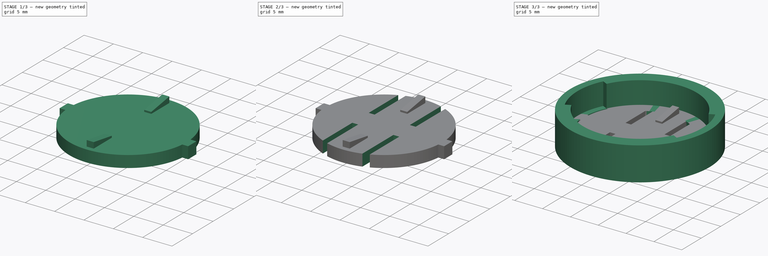
[diagram: build sequence overview — one tinted view per stage of 3, left to right]
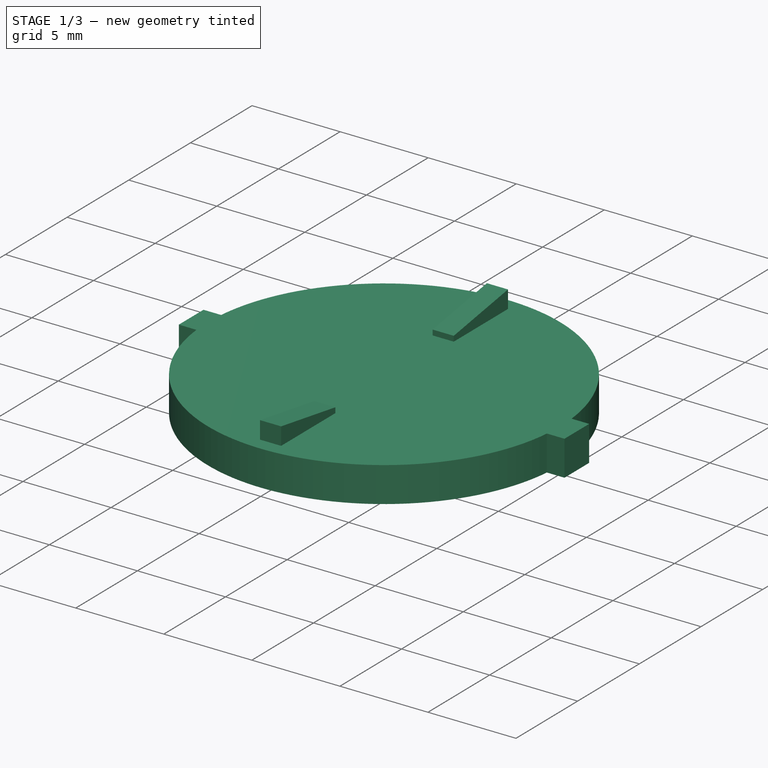
[diagram: stage 1 of 3 — iso view after this stage's code; geometry added in this stage tinted green]
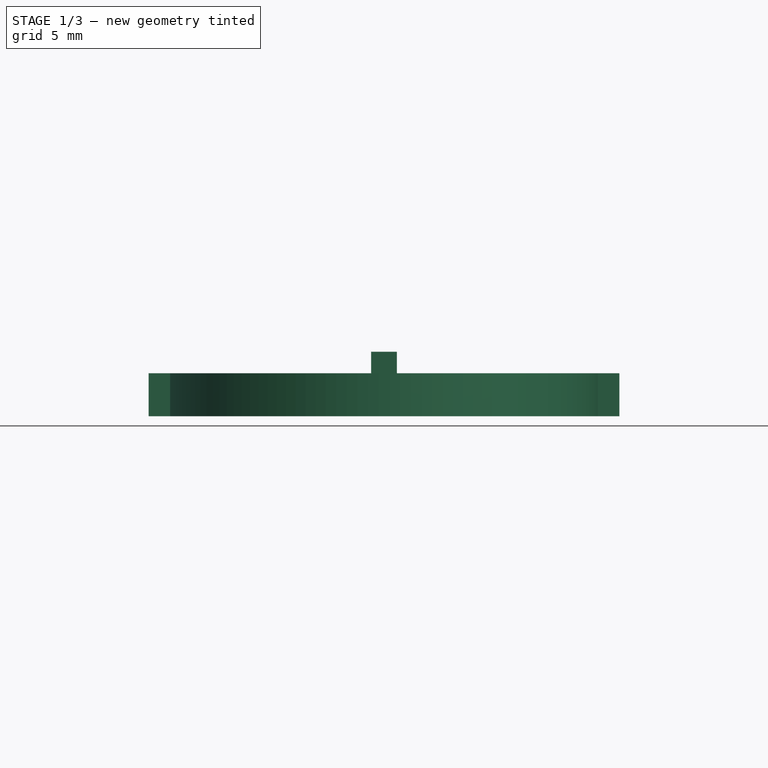
[diagram: stage 1 of 3 — front view after this stage's code; geometry added in this stage tinted green]
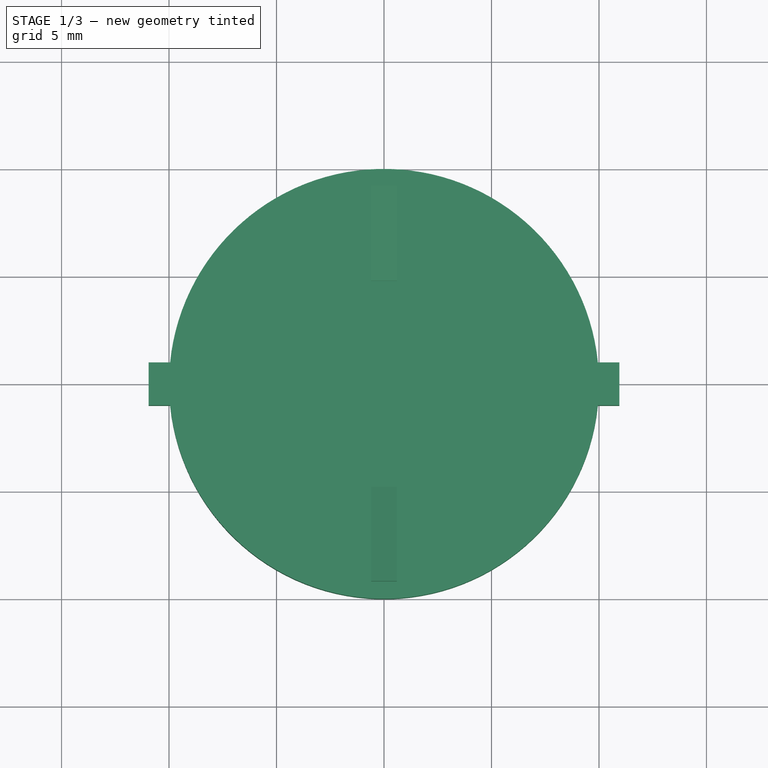
[diagram: stage 1 of 3 — top view after this stage's code; geometry added in this stage tinted green]
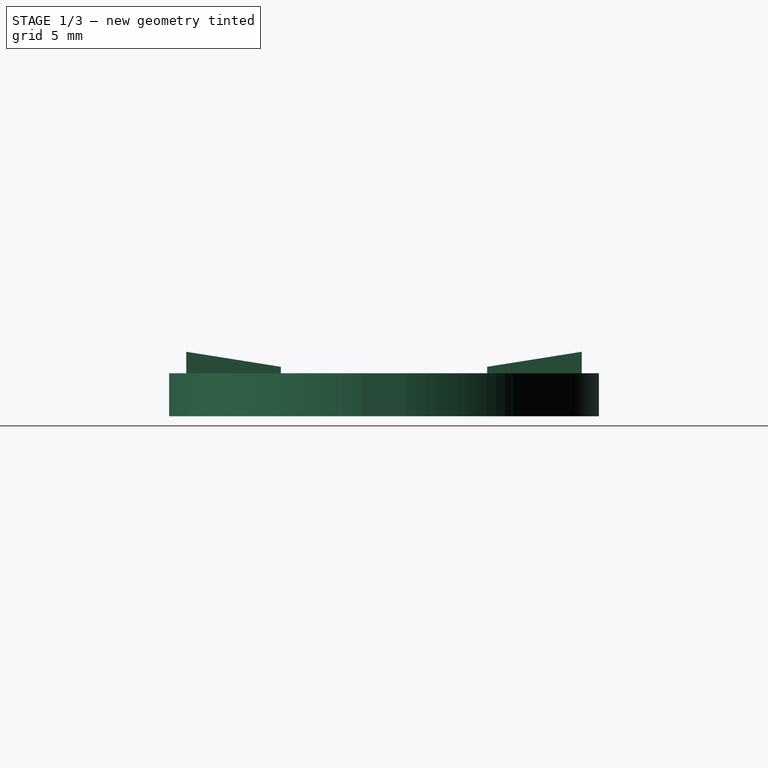
[diagram: stage 1 of 3 — right view after this stage's code; geometry added in this stage tinted green]
FCSTD DOCUMENT  (FreeCAD 1.0R39109 (Git))
Label: magicshine seemee300 mount
License: All rights reserved
LicenseURL: https://en.wikipedia.org/wiki/All_rights_reserved
objects: Sketcher::SketchObject×5, PartDesign::Pad×4, PartDesign::Body×2, PartDesign::Pocket×1
note: 27 computed .brp shape members not serialized (recipe doc carries the construction recipe); baked Part::Feature solids carry a one-line shape summary decoded from their .brp

FEATURE [PartDesign::Body] Body
  AllowCompound = false
  Group = -> [Sketch,Pad,Sketch001,Pad001]
  Origin = -> Origin
  Tip = -> Pad001
FEATURE [Sketcher::SketchObject] Sketch006
  ArcFitTolerance = 1e-06
  AttachmentSupport = -> [XY_Plane001]
  FullyConstrained = true
  MakeInternals = false
  MapMode = 5
  sketch-geometry (8):
    g0: ArcOfCircle CenterX=1e-16 CenterY=8.2e-15 CenterZ=0 NormalX=0 NormalY=0 NormalZ=1 AngleXU=0 Radius=10 StartAngle=0.100167 EndAngle=3.04143
    g1: ArcOfCircle CenterX=0 CenterY=0 CenterZ=0 NormalX=0 NormalY=0 NormalZ=1 AngleXU=0 Radius=10 StartAngle=3.24176 EndAngle=6.18302
    g2: LineSegment StartX=-9.94987 StartY=1 StartZ=0 EndX=-10.9499 EndY=1 EndZ=0
    g3: LineSegment StartX=-10.9499 StartY=1 StartZ=0 EndX=-10.9499 EndY=-1 EndZ=0
    g4: LineSegment StartX=-10.9499 StartY=-1 StartZ=0 EndX=-9.94987 EndY=-1 EndZ=0
    g5: LineSegment StartX=9.94987 StartY=-1 StartZ=0 EndX=10.9499 EndY=-1 EndZ=0
    g6: LineSegment StartX=10.9499 StartY=-1 StartZ=0 EndX=10.9499 EndY=1 EndZ=0
    g7: LineSegment StartX=10.9499 StartY=1 StartZ=0 EndX=9.94987 EndY=1 EndZ=0
  constraints (23):
    c: Symmetric(g1,g0,g-1)
    c: Symmetric(g0,g1,g-1)
    c: Equal(g1,g0)
    c: DistanceY(g1,g0) = 2
    c: DistanceY(g1,g0) = 2
    c: Coincident(g2,g0)
    c: Horizontal(g2)
    c: Coincident(g3,g2)
    c: Coincident(g4,g3)
    c: Coincident(g4,g1)
    c: Coincident(g5,g1)
    c: Horizontal(g5)
    c: Coincident(g6,g5)
    c: Vertical(g6)
    c: Coincident(g7,g6)
    c: Coincident(g7,g0)
    c: Horizontal(g7)
    c: DistanceX(g2,g2) = 1
    c: Diameter(g0) = 20
    c: Horizontal(g4)
    c: Vertical(g3)
    c: DistanceX(g7,g7) = 1
    c: Coincident(g1,g-1)
FEATURE [PartDesign::Pad] Pad006
  Direction = (0,0,1)
  Length = 2
  Length2 = 10
  Profile = -> Sketch006
  ReferenceAxis = -> Sketch006 [N_Axis]
  Refine = true
  Suppressed = false
  Type = 0
FEATURE [Sketcher::SketchObject] Sketch007
  ArcFitTolerance = 1e-06
  AttachmentSupport = -> [YZ_Plane001]
  FullyConstrained = true
  MakeInternals = false
  MapMode = 5
  Placement = pos=(0,0,0) rot=(0.57735,0.57735,0.57735;2.0944rad)
  sketch-geometry (8):
    g0: LineSegment StartX=4.8 StartY=2 StartZ=0 EndX=9.2 EndY=2 EndZ=0
    g1: LineSegment StartX=9.2 StartY=2 StartZ=0 EndX=9.2 EndY=3 EndZ=0
    g2: LineSegment StartX=-4.8 StartY=2 StartZ=0 EndX=-9.2 EndY=2 EndZ=0
    g3: LineSegment StartX=-9.2 StartY=2 StartZ=0 EndX=-9.2 EndY=3 EndZ=0
    g4: LineSegment StartX=-4.8 StartY=2 StartZ=0 EndX=-4.8 EndY=2.3 EndZ=0
    g5: LineSegment StartX=-4.8 StartY=2.3 StartZ=0 EndX=-9.2 EndY=3 EndZ=0
    g6: LineSegment StartX=4.8 StartY=2 StartZ=0 EndX=4.8 EndY=2.3 EndZ=0
    g7: LineSegment StartX=4.8 StartY=2.3 StartZ=0 EndX=9.2 EndY=3 EndZ=0
  constraints (20):
    c: Horizontal(g0)
    c: Coincident(g0,g1)
    c: Vertical(g1)
    c: DistanceY(g1,g1) = 1
    c: DistanceX(g-1,g0) = 4.8
    c: DistanceX(g-1,g0) = 9.2
    c: DistanceY(g-1,g0) = 2
    c: Coincident(g2,g3)
    c: Symmetric(g2,g0,g-2)
    c: Symmetric(g1,g3,g-2)
    c: Coincident(g4,g2)
    c: Coincident(g5,g4)
    c: Coincident(g5,g3)
    c: Coincident(g6,g0)
    c: Coincident(g7,g6)
    c: Coincident(g7,g1)
    c: Vertical(g6)
    c: Symmetric(g2,g0,g-2)
    c: Symmetric(g6,g4,g-2)
    c: DistanceY(g4,g4) = 0.3
FEATURE [PartDesign::Pad] Pad007
  BaseFeature = -> Pad006
  Direction = (1,0,0)
  Length = 1.2
  Length2 = 10
  Midplane = true
  Profile = -> Sketch007
  ReferenceAxis = -> Sketch007 [N_Axis]
  Refine = true
  Suppressed = false
  Type = 0
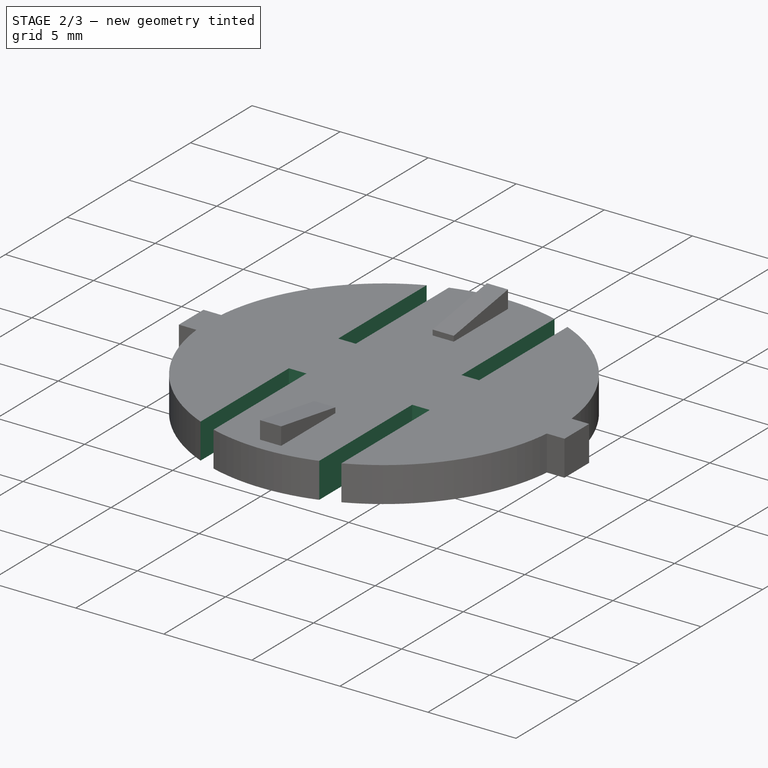
[diagram: stage 2 of 3 — iso view after this stage's code; geometry added in this stage tinted green]
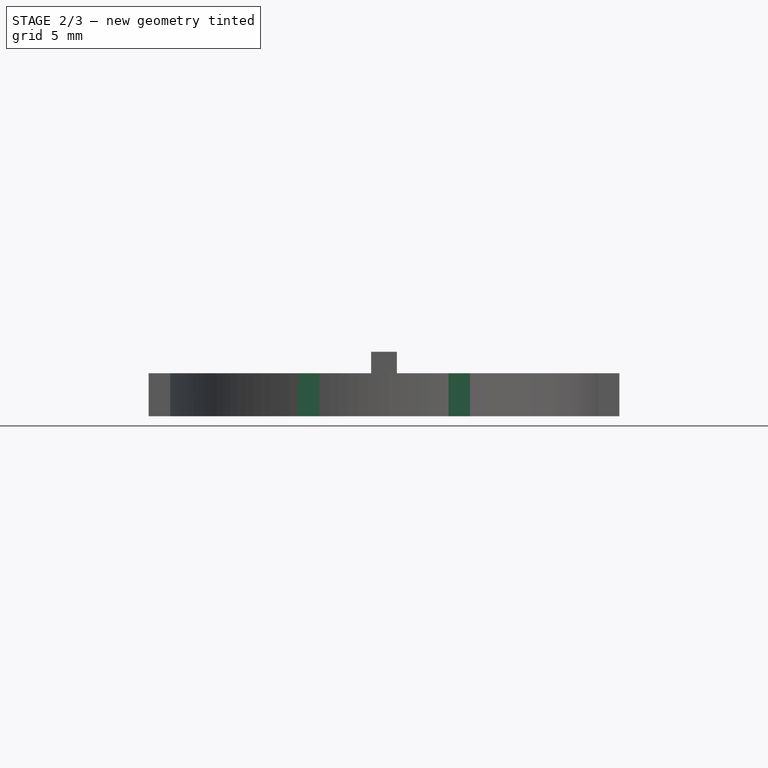
[diagram: stage 2 of 3 — front view after this stage's code; geometry added in this stage tinted green]
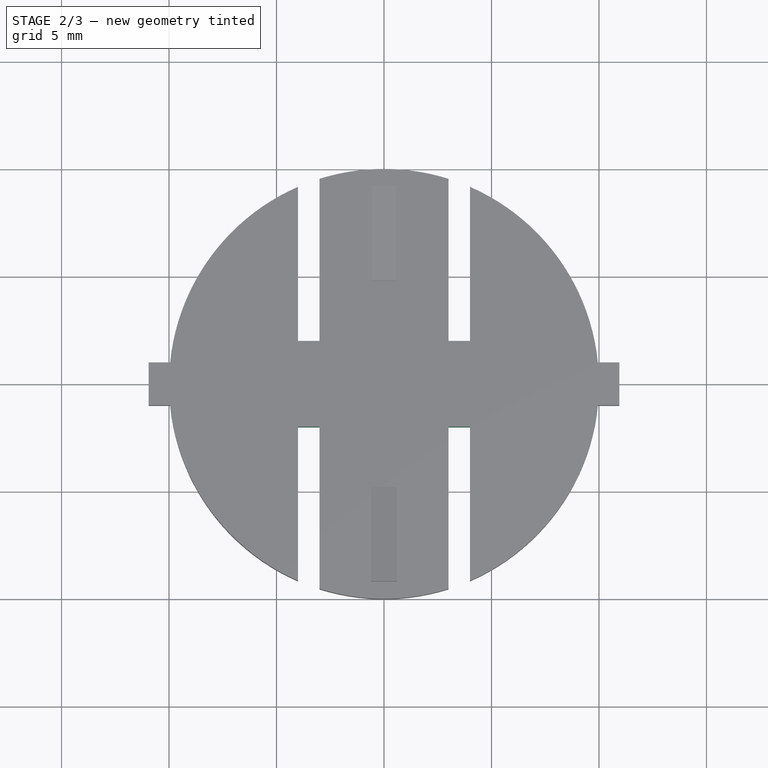
[diagram: stage 2 of 3 — top view after this stage's code; geometry added in this stage tinted green]
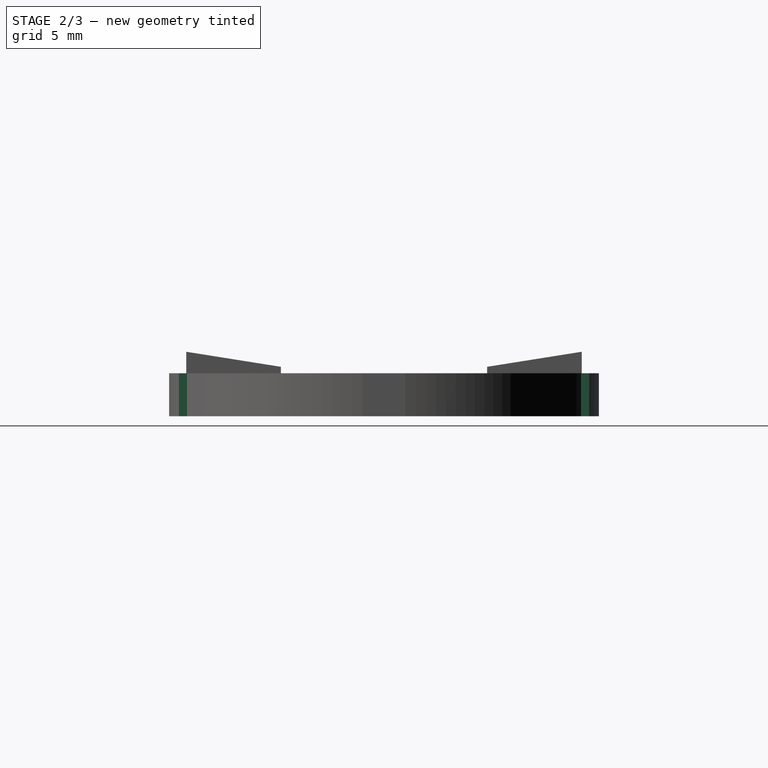
[diagram: stage 2 of 3 — right view after this stage's code; geometry added in this stage tinted green]
FEATURE [Sketcher::SketchObject] Sketch008
  ArcFitTolerance = 1e-06
  AttachmentSupport = -> [XY_Plane001]
  FullyConstrained = true
  MakeInternals = false
  MapMode = 5
  sketch-geometry (16):
    g0: LineSegment StartX=-4 StartY=12 StartZ=0 EndX=-4 EndY=2 EndZ=0
    g1: LineSegment StartX=-4 StartY=2 StartZ=0 EndX=-3 EndY=2 EndZ=0
    g2: LineSegment StartX=-3 StartY=2 StartZ=0 EndX=-3 EndY=12 EndZ=0
    g3: LineSegment StartX=-3 StartY=12 StartZ=0 EndX=-4 EndY=12 EndZ=0
    g4: LineSegment StartX=3 StartY=12 StartZ=0 EndX=3 EndY=2 EndZ=0
    g5: LineSegment StartX=3 StartY=2 StartZ=0 EndX=4 EndY=2 EndZ=0
    g6: LineSegment StartX=4 StartY=2 StartZ=0 EndX=4 EndY=12 EndZ=0
    g7: LineSegment StartX=4 StartY=12 StartZ=0 EndX=3 EndY=12 EndZ=0
    g8: LineSegment StartX=-4 StartY=-2 StartZ=0 EndX=-4 EndY=-12 EndZ=0
    g9: LineSegment StartX=-4 StartY=-12 StartZ=0 EndX=-3 EndY=-12 EndZ=0
    g10: LineSegment StartX=-3 StartY=-12 StartZ=0 EndX=-3 EndY=-2 EndZ=0
    g11: LineSegment StartX=-3 StartY=-2 StartZ=0 EndX=-4 EndY=-2 EndZ=0
    g12: LineSegment StartX=3 StartY=-2 StartZ=0 EndX=3 EndY=-12 EndZ=0
    g13: LineSegment StartX=3 StartY=-12 StartZ=0 EndX=4 EndY=-12 EndZ=0
    g14: LineSegment StartX=4 StartY=-12 StartZ=0 EndX=4 EndY=-2 EndZ=0
    g15: LineSegment StartX=4 StartY=-2 StartZ=0 EndX=3 EndY=-2 EndZ=0
  constraints (38):
    c: Coincident(g0,g1)
    c: Coincident(g1,g2)
    c: Coincident(g2,g3)
    c: Coincident(g3,g0)
    c: Vertical(g0)
    c: Vertical(g2)
    c: Horizontal(g1)
    c: Horizontal(g3)
    c: Coincident(g4,g5)
    c: Coincident(g5,g6)
    c: Coincident(g6,g7)
    c: Coincident(g7,g4)
    c: Coincident(g8,g9)
    c: Coincident(g9,g10)
    c: Coincident(g10,g11)
    c: Coincident(g11,g8)
    c: Coincident(g12,g13)
    c: Coincident(g13,g14)
    c: Coincident(g14,g15)
    c: Coincident(g15,g12)
    c: Vertical(g12)
    c: Vertical(g14)
    c: DistanceX(g3,g3) = 1
    c: DistanceY(g-1,g1) = 2
    c: DistanceX(g1,g-1) = 3
    c: Symmetric(g4,g2,g-2)
    c: Symmetric(g6,g0,g-2)
    c: Symmetric(g4,g1,g-2)
    c: Symmetric(g5,g0,g-2)
    c: DistanceY(g0,g0) = 10
    c: Symmetric(g12,g4,g-1)
    c: Symmetric(g5,g14,g-1)
    c: Symmetric(g1,g10,g-1)
    c: Symmetric(g8,g0,g-1)
    c: Symmetric(g9,g12,g-2)
    c: Symmetric(g8,g13,g-2)
    c: Equal(g0,g8)
    c: Horizontal(g9)
FEATURE [PartDesign::Pocket] Pocket
  BaseFeature = -> Pad007
  Direction = (0,0,-1)
  Length = 5
  Length2 = 5
  Midplane = true
  Profile = -> Sketch008
  ReferenceAxis = -> Sketch008 [N_Axis]
  Refine = true
  Suppressed = false
  Type = 1
FEATURE [PartDesign::Body] Body001
  AllowCompound = false
  Group = -> [Sketch006,Pad006,Sketch007,Pad007,Sketch008,Pocket]
  Origin = -> Origin001
  Placement = pos=(-28,0,0) rot=(0,0,1;0rad)
  Tip = -> Pocket
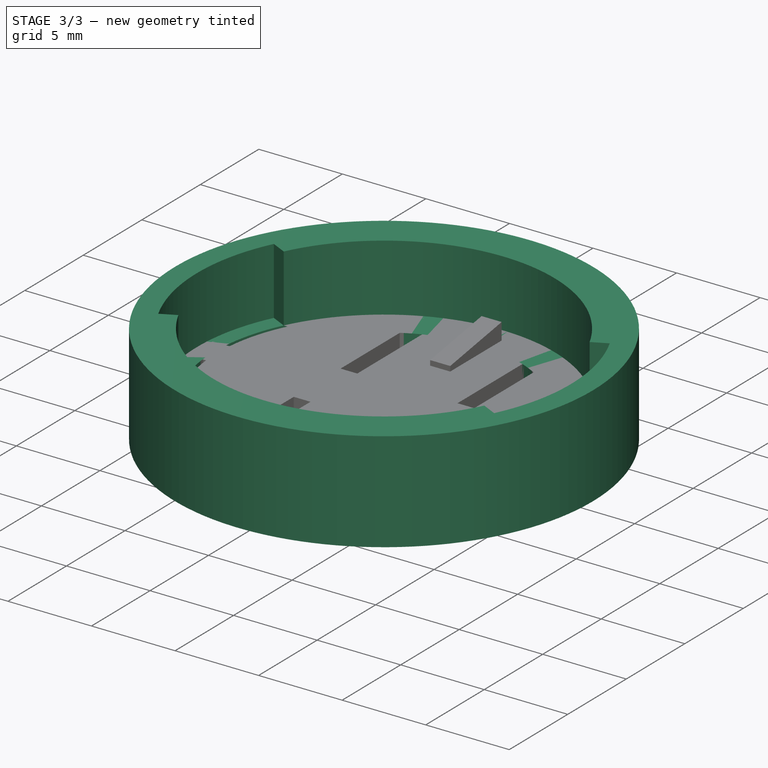
[diagram: stage 3 of 3 — iso view after this stage's code; geometry added in this stage tinted green]
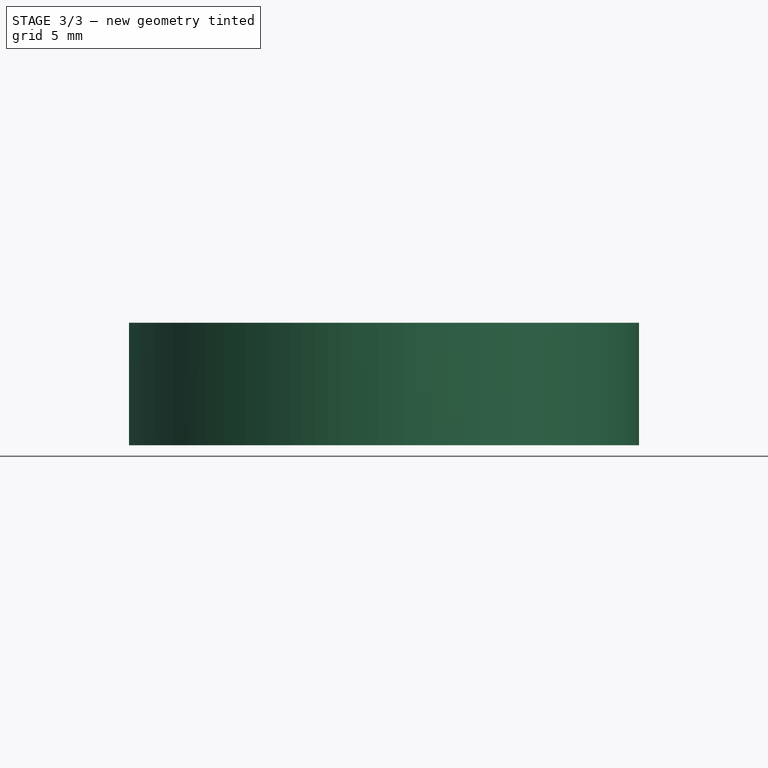
[diagram: stage 3 of 3 — front view after this stage's code; geometry added in this stage tinted green]
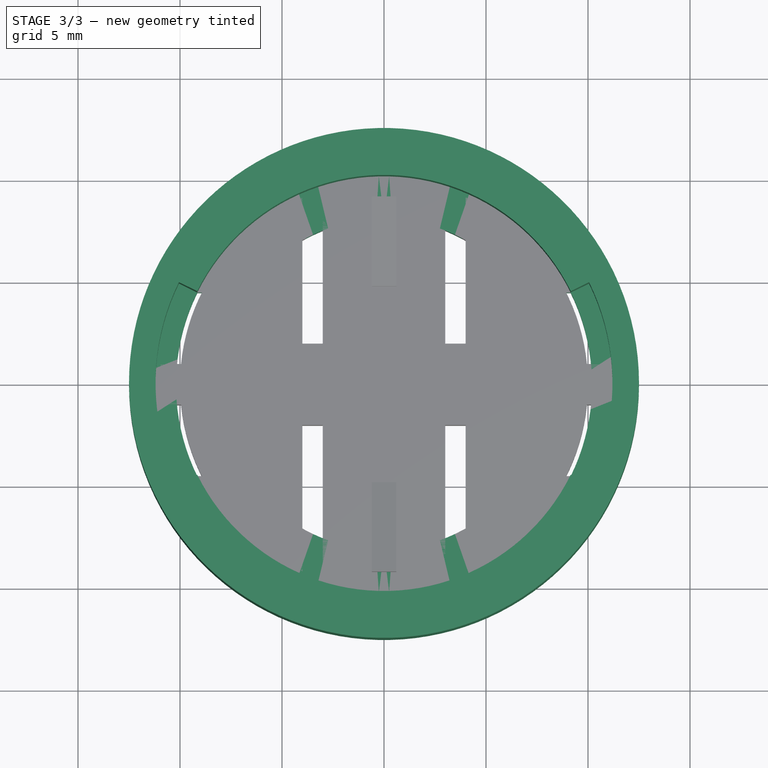
[diagram: stage 3 of 3 — top view after this stage's code; geometry added in this stage tinted green]
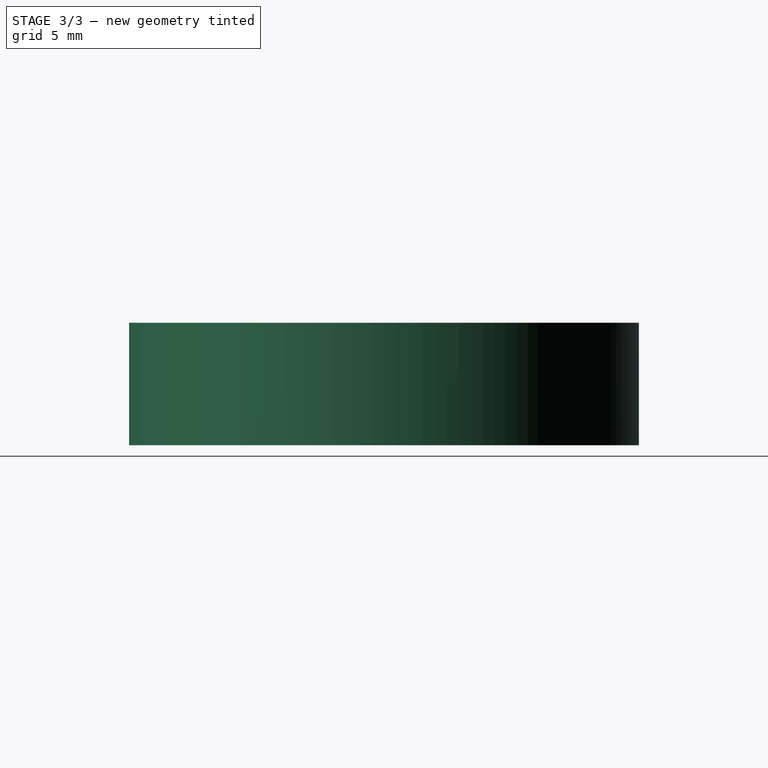
[diagram: stage 3 of 3 — right view after this stage's code; geometry added in this stage tinted green]
FEATURE [Sketcher::SketchObject] Sketch
  ArcFitTolerance = 1e-06
  AttachmentSupport = -> [XY_Plane]
  FullyConstrained = true
  MakeInternals = false
  MapMode = 5
  sketch-geometry (9):
    g0: Circle CenterX=0 CenterY=0 CenterZ=0 NormalX=0 NormalY=0 NormalZ=1 AngleXU=0 Radius=12.5
    g1: ArcOfCircle CenterX=0 CenterY=0 CenterZ=0 NormalX=0 NormalY=0 NormalZ=1 AngleXU=0 Radius=10.2 StartAngle=3.5985 EndAngle=5.82628
    g2: ArcOfCircle CenterX=0 CenterY=0 CenterZ=0 NormalX=0 NormalY=0 NormalZ=1 AngleXU=0 Radius=10.2 StartAngle=0.456909 EndAngle=2.68468
    g3: ArcOfCircle CenterX=0 CenterY=0 CenterZ=0 NormalX=0 NormalY=0 NormalZ=1 AngleXU=0 Radius=11.2 StartAngle=2.68468 EndAngle=3.5985
    g4: ArcOfCircle CenterX=0 CenterY=0 CenterZ=0 NormalX=0 NormalY=0 NormalZ=1 AngleXU=0 Radius=11.2 StartAngle=5.82628 EndAngle=6.74009
    g5: LineSegment StartX=-9.15369 StartY=4.5 StartZ=0 EndX=-10.0511 EndY=4.94118 EndZ=0
    g6: LineSegment StartX=-9.15369 StartY=-4.5 StartZ=0 EndX=-10.0511 EndY=-4.94118 EndZ=0
    g7: LineSegment StartX=10.0511 StartY=-4.94118 StartZ=0 EndX=9.15369 EndY=-4.5 EndZ=0
    g8: LineSegment StartX=10.0511 StartY=4.94118 StartZ=0 EndX=9.15369 EndY=4.5 EndZ=0
  constraints (25):
    c: Diameter(g0) = 25
    c: Coincident(g0,g1)
    c: Coincident(g0,g-1)
    c: Coincident(g2,g0)
    c: Symmetric(g1,g2,g-1)
    c: Horizontal(g1,g1)
    c: Horizontal(g2,g2)
    c: Diameter(g2) = 20.4
    c: DistanceY(g1,g2) = 9
    c: Coincident(g3,g0)
    c: Coincident(g4,g0)
    c: Coincident(g5,g2)
    c: Coincident(g5,g3)
    c: Coincident(g6,g1)
    c: Coincident(g6,g3)
    c: Coincident(g7,g4)
    c: Coincident(g7,g1)
    c: Coincident(g8,g4)
    c: Coincident(g8,g2)
    c: Perpendicular(g2,g8)
    c: Perpendicular(g1,g7)
    c: Perpendicular(g2,g5)
    c: Distance(g5,g5) = 1
    c: Perpendicular(g1,g6)
    c: Distance(g8,g8) = 1
FEATURE [PartDesign::Pad] Pad
  Direction = (0,0,1)
  Length = 6
  Length2 = 10
  Profile = -> Sketch
  ReferenceAxis = -> Sketch [N_Axis]
  Refine = true
  Suppressed = false
  Type = 0
FEATURE [Sketcher::SketchObject] Sketch001
  ArcFitTolerance = 1e-06
  AttachmentSupport = -> [XY_Plane]
  ExternalGeometry = -> [Pad]
  FullyConstrained = true
  MakeInternals = false
  MapMode = 5
  sketch-geometry (9):
    g0: Circle CenterX=0 CenterY=0 CenterZ=0 NormalX=0 NormalY=0 NormalZ=1 AngleXU=0 Radius=12.5
    g1: ArcOfCircle CenterX=0 CenterY=0 CenterZ=0 NormalX=0 NormalY=0 NormalZ=1 AngleXU=0 Radius=8.12 StartAngle=0.587386 EndAngle=2.55421
    g2: ArcOfCircle CenterX=0 CenterY=0 CenterZ=0 NormalX=0 NormalY=0 NormalZ=1 AngleXU=0 Radius=8.12 StartAngle=3.72898 EndAngle=5.6958
    g3: LineSegment StartX=9.15369 StartY=4.5 StartZ=0 EndX=6.75902 EndY=4.5 EndZ=0
    g4: LineSegment StartX=9.15369 StartY=-4.5 StartZ=0 EndX=6.75902 EndY=-4.5 EndZ=0
    g5: ArcOfCircle CenterX=0 CenterY=0 CenterZ=0 NormalX=0 NormalY=0 NormalZ=1 AngleXU=0 Radius=10.2 StartAngle=5.82628 EndAngle=6.74009
    g6: ArcOfCircle CenterX=0 CenterY=0 CenterZ=0 NormalX=0 NormalY=0 NormalZ=1 AngleXU=0 Radius=10.2 StartAngle=2.68468 EndAngle=3.5985
    g7: LineSegment StartX=-6.75902 StartY=4.5 StartZ=0 EndX=-9.15369 EndY=4.5 EndZ=0
    g8: LineSegment StartX=-6.75902 StartY=-4.5 StartZ=0 EndX=-9.15369 EndY=-4.5 EndZ=0
  constraints (25):
    c: Equal(g0,g-3)
    c: DistanceY(g2,g1) = 9
    c: Horizontal(g1,g1)
    c: Horizontal(g2,g2)
    c: Coincident(g1,g0)
    c: Coincident(g0,g-1)
    c: Coincident(g2,g0)
    c: PointOnObject(g3,g-4)
    c: Coincident(g4,g5)
    c: Coincident(g3,g5)
    c: Coincident(g3,g1)
    c: Coincident(g4,g2)
    c: Coincident(g5,g6)
    c: Coincident(g5,g0)
    c: Coincident(g7,g1)
    c: Coincident(g7,g6)
    c: Coincident(g8,g2)
    c: Coincident(g8,g6)
    c: Diameter(g1) = 16.24
    c: PointOnObject(g6,g-4)
    c: Symmetric(g1,g2,g-1)
    c: Horizontal(g7)
    c: Horizontal(g8)
    c: Horizontal(g4)
    c: Horizontal(g3)
FEATURE [PartDesign::Pad] Pad001
  BaseFeature = -> Pad
  Direction = (0,0,1)
  Length = 2
  Length2 = 10
  Profile = -> Sketch001
  ReferenceAxis = -> Sketch001 [N_Axis]
  Refine = true
  Suppressed = false
  Type = 0
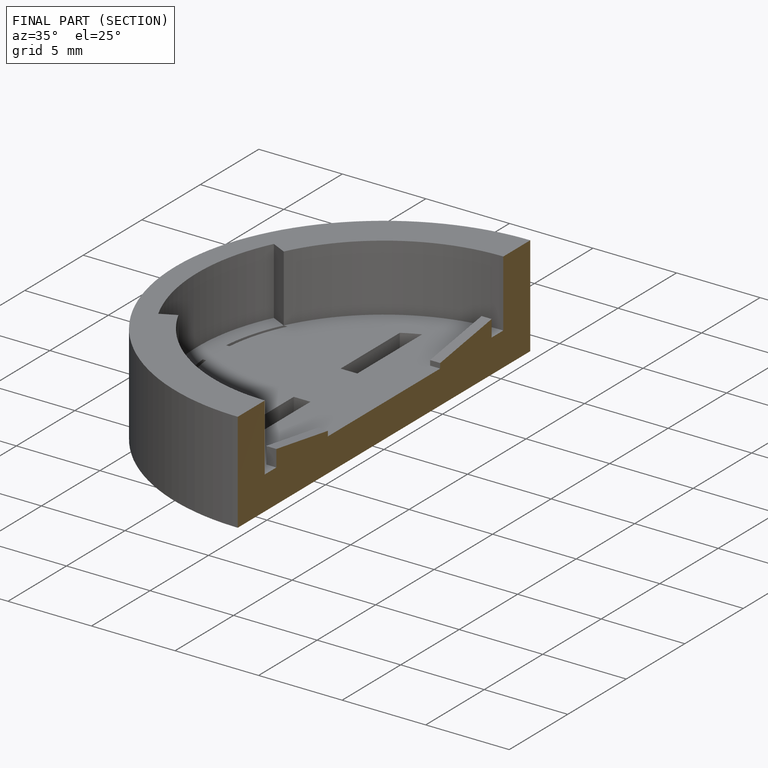
[diagram: finished part — half-section view (interior)]
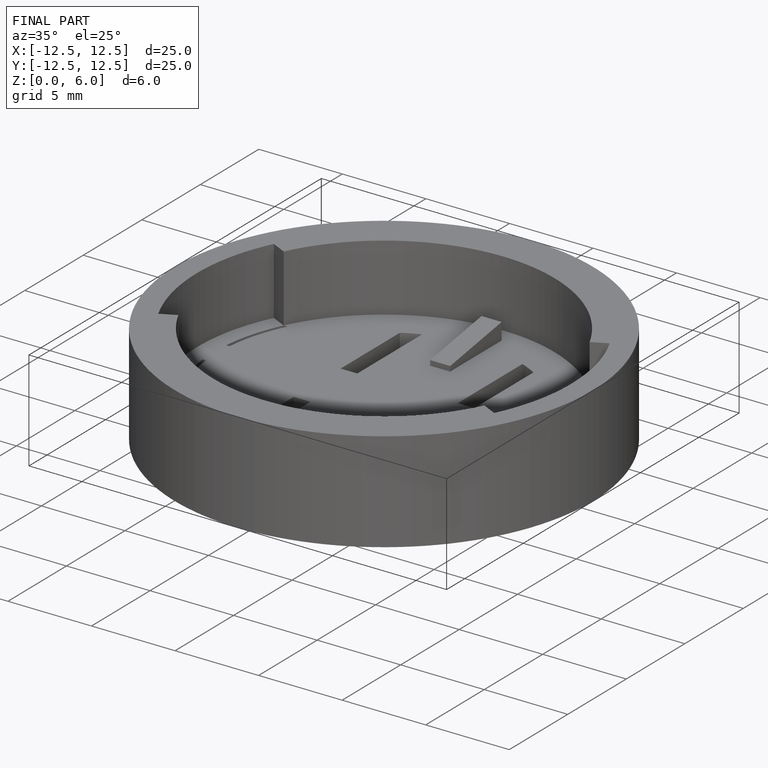
[diagram: finished part — iso view with bounding-box wireframe]
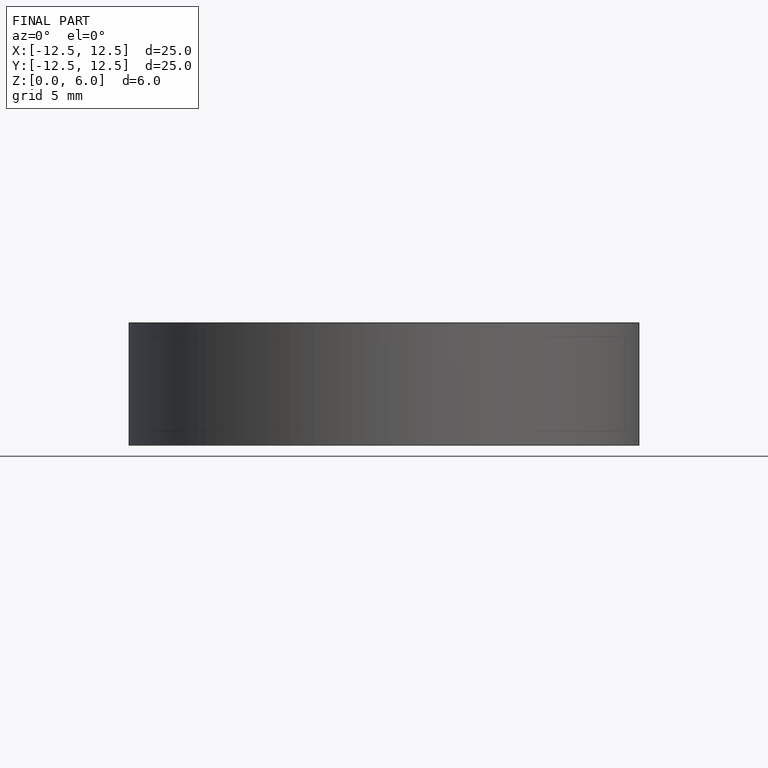
[diagram: finished part — front view with bounding-box wireframe]
